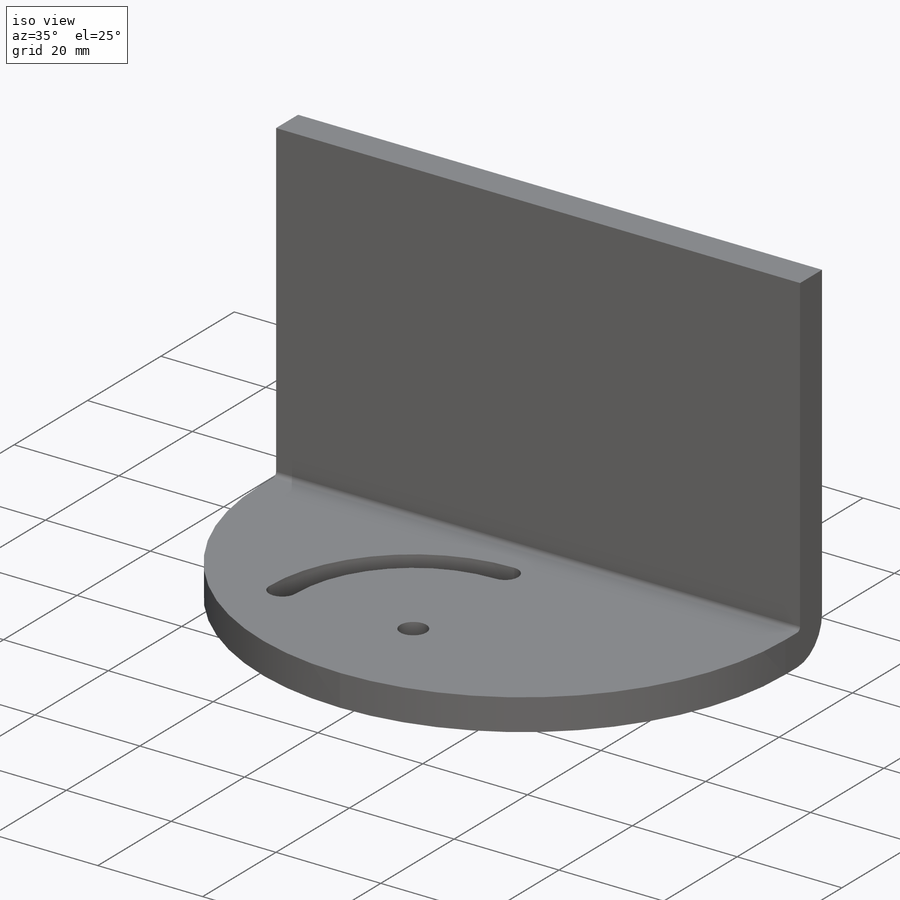
[diagram: iso view]
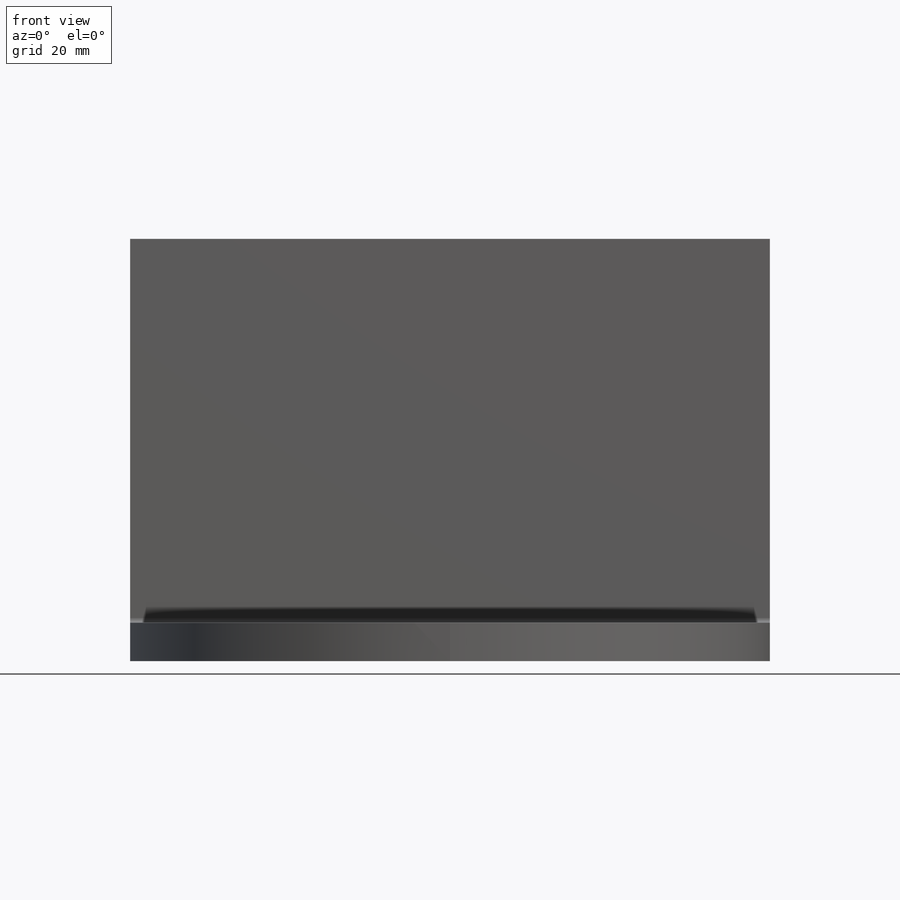
[diagram: front view]
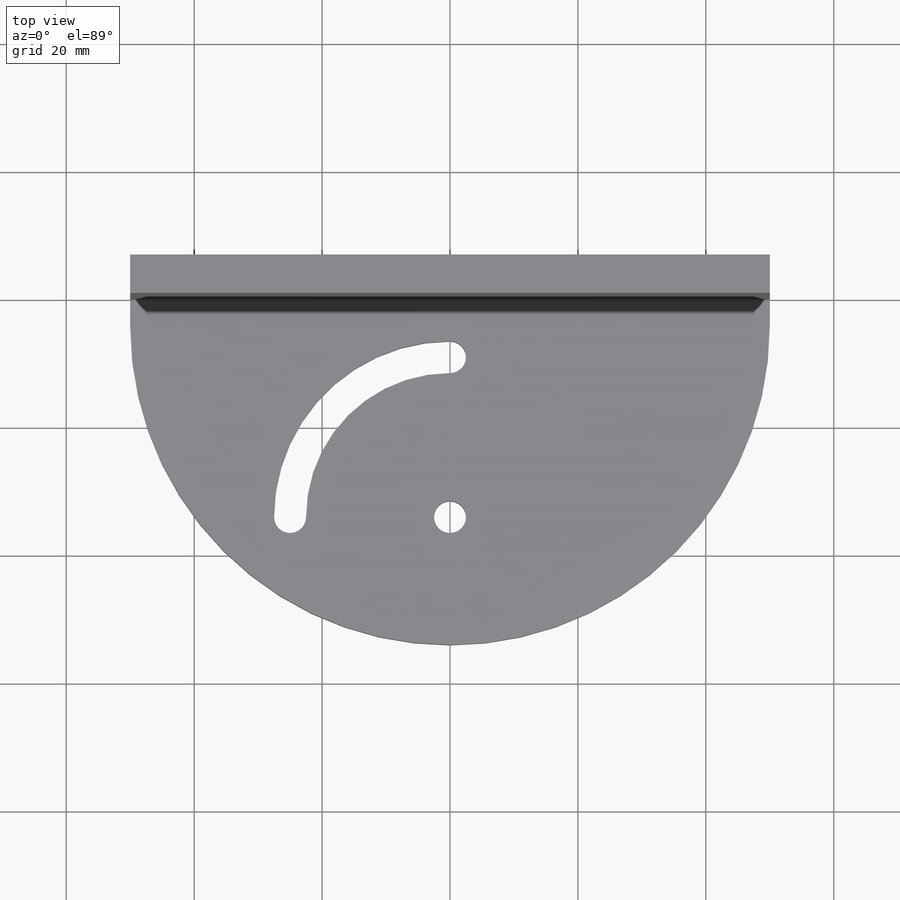
[diagram: top view]
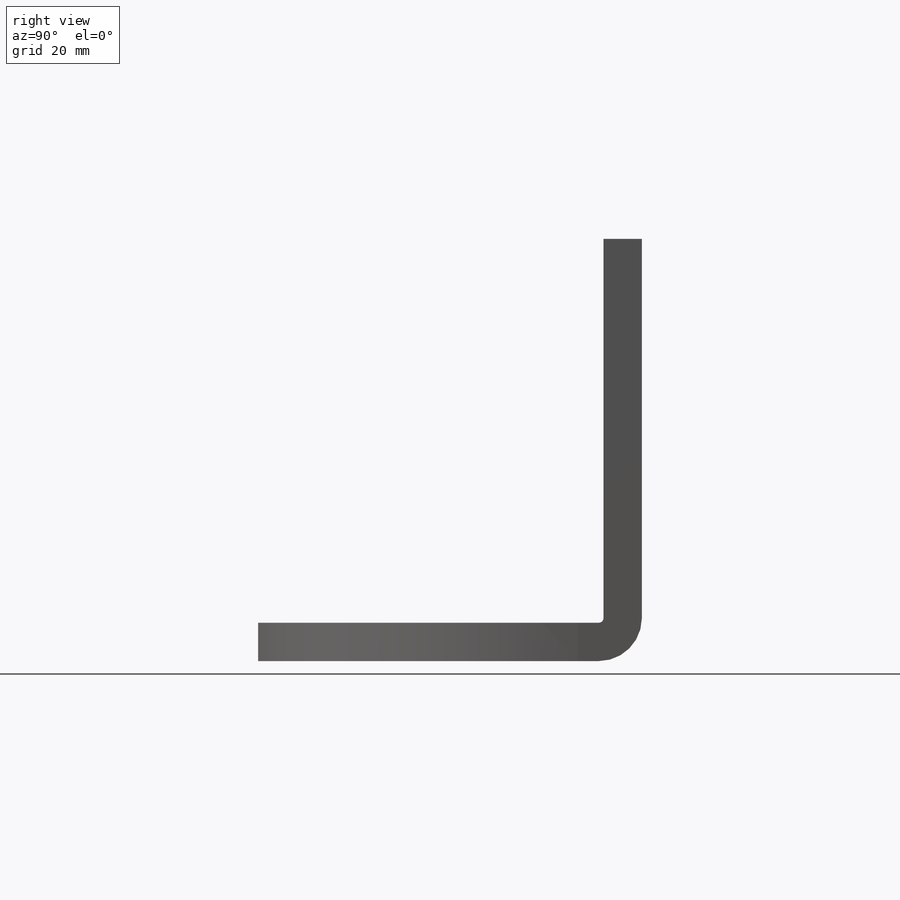
[diagram: right view]
SOLIDWORKS PART (.sldprt)
format: sldprt  version: not decoded by parser v0  size: 223,232 bytes
history: native  units: mm
features: sketch x6, sheet_metal_op x2, cut_extrude x2, material x1, fillet x1 + 1 further entry (+16 scaffold rows collapsed; 1 parser-record rows omitted)
feature tree (30):
  scaffold x16  (default folders/planes/origin — collapsed)
  material  "201 Annealed Stainless Steel (SS)"
  sketch  "Sketch2"  dims[c1.D1=~176.10811mm c2.D1=100.0mm c2.D2=60.0mm c2.D3=50.0mm c2.D4=30.0mm]
  sheet_metal_op  "Sheet-Metal1"  Thickness=6mm
  sheet_metal_op  "Base-Flange1"
  sketch  "Sketch6"  dims[c1.D1=0.7366mm c1.D4=90.0deg c1.D5=1.0 c1.D8=3.0mm c1.D9=3.0mm c2.D1=0.7366mm c2.D2=500.0mm c2.D3=0.0mm c2.D6=10.0mm c2.D7=60.0mm]
  fillet  "Fillet1"  Radius=50mm
  sketch  "Sketch7"  dims[D1=5.0mm D2=20.0mm]
  cut_extrude  "Cut-Extrude1"  Depth=10mm
  sketch  "Sketch10"
  sketch  "Sketch11"  dims[D1=25.0mm D2=22.5mm D3=27.5mm]
  cut_extrude  "Cut-Extrude3"  Depth=10mm
  "Flat-Pattern1"
  sketch  "Bend-Lines1"
  parser-record x1  (decoder bookkeeping rows leaked as tree rows — omitted from the tree; the rows remain in map.json)
decode coverage: 8 of 11 modeling features carry decoded parameters; 1 rows unclassified (native names shown)
note: ~ marks probable driven/reference dimensions
note: suppression state not decoded; provenance and decode notes live in map.json
